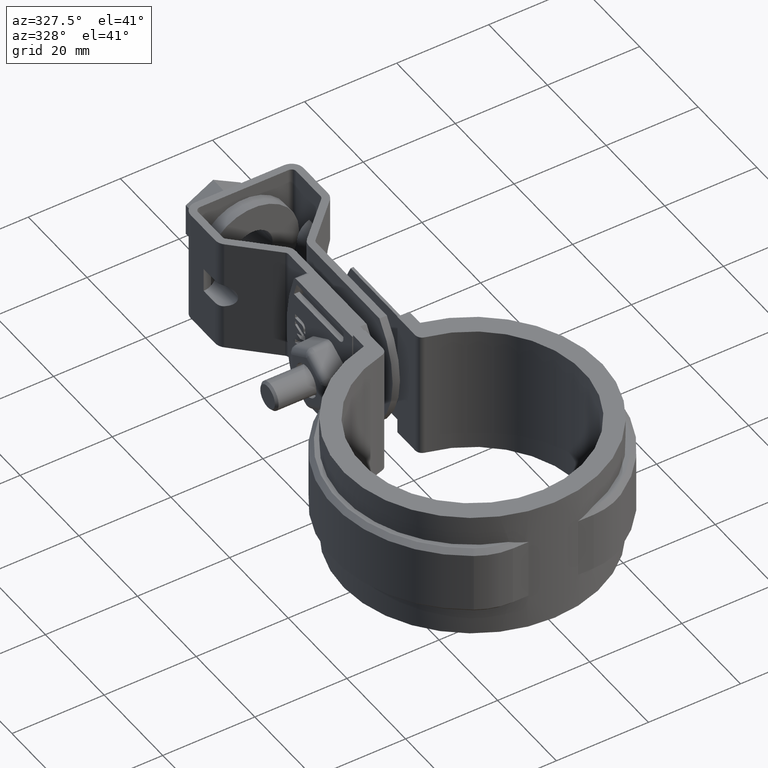
[diagram: clean part render]
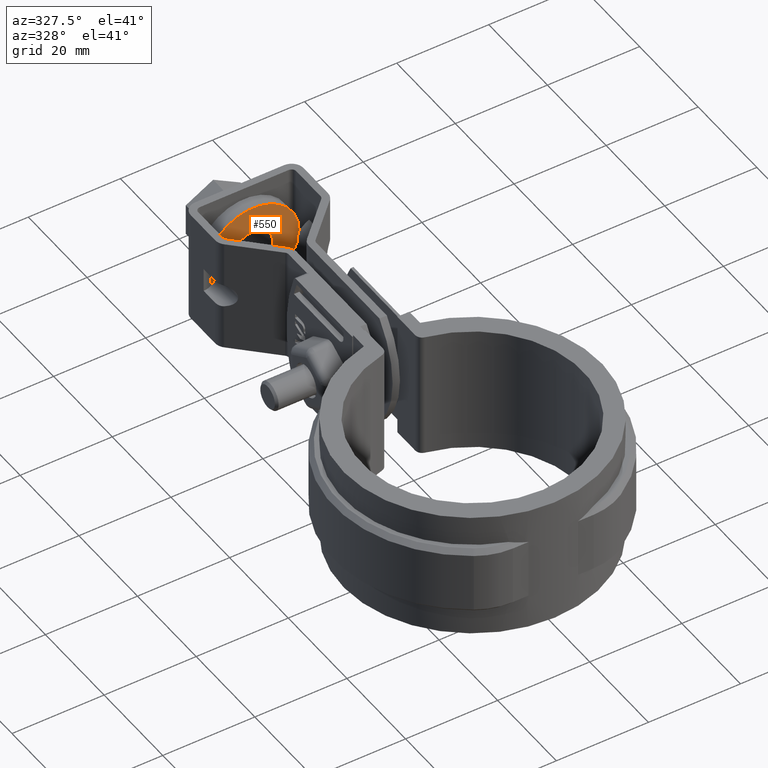
[diagram: same view with one face highlighted and labeled with its STEP entity id]
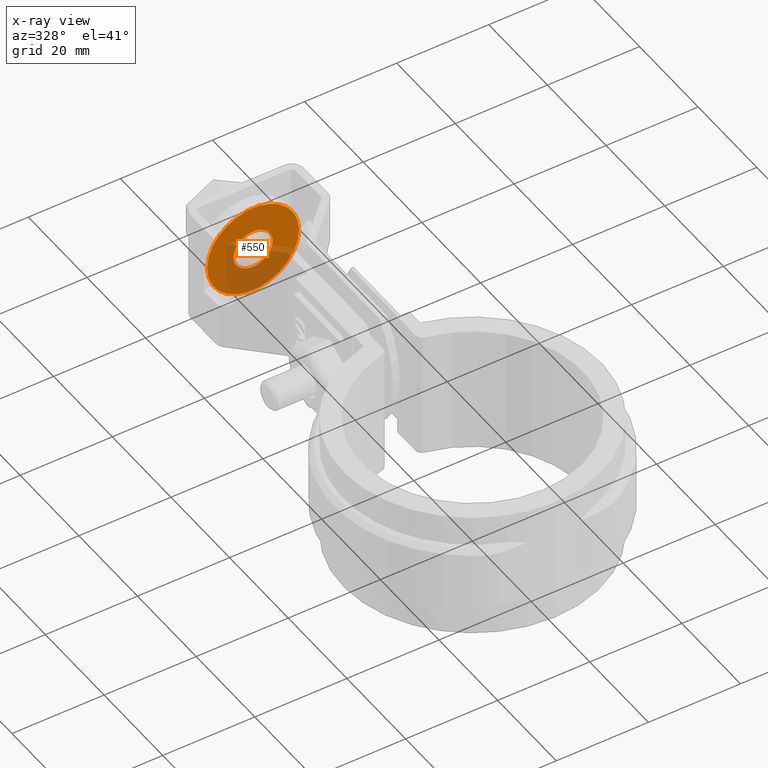
[diagram: x-ray of the same camera — body ghosted, the highlighted face saturated]
A machine part, auxiliary view. The second image highlights one B-rep face of the part: STEP entity #550.
The next image is the same camera in x-ray: the body ghosted, the highlighted face saturated — about 37% of this face is hidden behind the body in this view.
In plain terms, the highlighted planar face has unit normal (-0, 1, -0).
Its self-contained STEP definition (entity closure, byte-faithful):
#550 = ADVANCED_FACE( '', ( #1104, #1105 ), #1106, .F. );
#1104 = FACE_BOUND( '', #2448, .T. );
#1105 = FACE_OUTER_BOUND( '', #2449, .T. );
#1106 = PLANE( '', #2450 );
#2448 = EDGE_LOOP( '', ( #5600 ) );
#2449 = EDGE_LOOP( '', ( #5601 ) );
#2450 = AXIS2_PLACEMENT_3D( '', #5602, #5603, #5604 );
#5600 = ORIENTED_EDGE( '', *, *, #7466, .T. );
#5601 = ORIENTED_EDGE( '', *, *, #7467, .F. );
#5602 = CARTESIAN_POINT( '', ( -6.62111748797458E-010, 74.7998007485224, -12.5000000691590 ) );
#5603 = DIRECTION( '', ( -3.46787463341350E-012, 1.00000000000000, -5.08856068393042E-010 ) );
#5604 = DIRECTION( '', ( 1.00000000000000, 3.46787463237660E-012, -2.03772028769699E-012 ) );
#7466 = EDGE_CURVE( '', #8807, #8807, #8808, .T. );
#7467 = EDGE_CURVE( '', #8809, #8809, #8810, .T. );
#8807 = VERTEX_POINT( '', #12470 );
#8808 = CIRCLE( '', #12471, 4.25000000000000 );
#8809 = VERTEX_POINT( '', #12472 );
#8810 = CIRCLE( '', #12473, 10.0000000000000 );
#12470 = CARTESIAN_POINT( '', ( 4.24999999933789, 74.7998007485372, -12.5000000691677 ) );
#12471 = AXIS2_PLACEMENT_3D( '', #14247, #14248, #14249 );
#12472 = CARTESIAN_POINT( '', ( 9.99999999933789, 74.7998007485571, -12.5000000691794 ) );
#12473 = AXIS2_PLACEMENT_3D( '', #14250, #14251, #14252 );
#14247 = CARTESIAN_POINT( '', ( -6.62113917201803E-010, 74.7998007485224, -12.5000000691590 ) );
#14248 = DIRECTION( '', ( -3.46787463341350E-012, 1.00000000000000, -5.08856068393042E-010 ) );
#14249 = DIRECTION( '', ( 1.00000000000000, 3.46787463237660E-012, -2.03772028769699E-012 ) );
#14250 = CARTESIAN_POINT( '', ( -6.62111748797458E-010, 74.7998007485224, -12.5000000691590 ) );
#14251 = DIRECTION( '', ( -3.46787463341350E-012, 1.00000000000000, -5.08856068393042E-010 ) );
#14252 = DIRECTION( '', ( 1.00000000000000, 3.46787463237660E-012, -2.03772028769699E-012 ) );